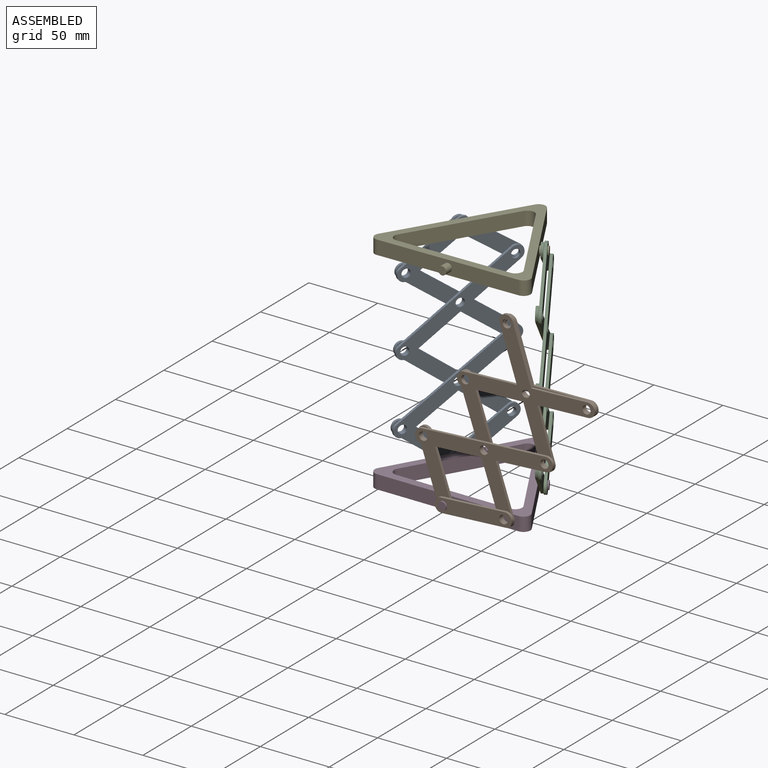
[diagram: assembled view]
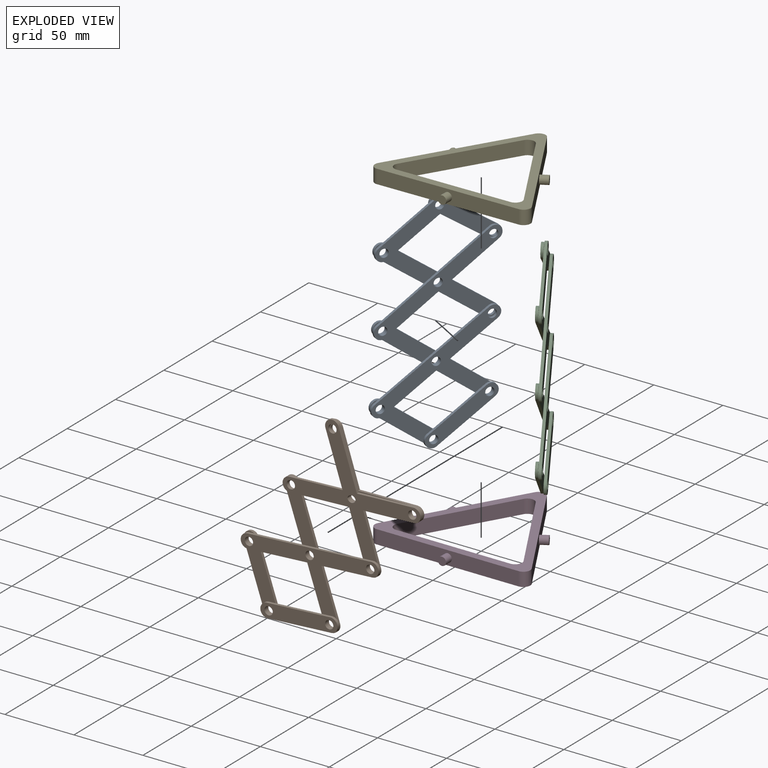
[diagram: exploded view]
GUIDED TOUR — MATED ASSEMBLY WITH SUBASSEMBLIES (Onshape document b6781e57c7d92bd61f52bf06, AutoMate assembly b6781e57c7d92bd61f52bf06_af8572f9969f21d5b0e457aa_2a93b60660b95c885320334c_default)

This assembly has 26 component occurrences arranged in 5 top-level units: 2 individual components plus 3 subassemblies (S0, S1, S2). The tour has two levels: first the top level, where each subassembly is treated as one rigid unit; then each subassembly is toured internally in its own section (nesting deeper than one subassembly level is flattened into its subassembly's section).

Components are labeled P0..P25 across the whole record; subassembly units are labeled S0..S2. A mate is a constraint between two units; its type names the relative motion it leaves free:
  REVOLUTE — leaves rotation about the listed axis free (a hinge).
Axis/direction vectors are unit vectors and 'through' points are millimeter coordinates, both in the assembly's world frame.

TOP-LEVEL MATES (between units; each subassembly's internal mates are listed in its own section)
  1. REVOLUTE "Revolute 4": P8 <-> S0, axis (0.866, -0.500, 0.000) through (-32.60, 18.82, 5.00) mm
  2. REVOLUTE "Revolute 3": P21 <-> S2, axis (-0.866, -0.500, 0.000) through (32.02, 19.82, 157.89) mm
  3. REVOLUTE "Revolute 1": P8 <-> S1, axis (0.000, 1.000, 0.000) through (0.00, -37.64, 5.00) mm
  4. REVOLUTE "Revolute 2": P8 <-> S2, axis (-0.866, -0.500, 0.000) through (32.60, 18.82, 5.00) mm

TOP-LEVEL ASSEMBLY ORDER
  1. S2 — the base component [order verified]
  2. S0 [order verified]
  3. P8 [order verified]
  4. S1 [order verified]
  5. P21 [order verified]
(S1 verified with a relaxed clearance tolerance: the source model stores slight part interference there.)
Order-tag legend:
  [order verified] — this step's position reverses a verified removal order: the component was checked to insert without passing through the ones already placed.

Of the 26 component occurrences, 24 carry the full construction recipe — the FeatureScript program that regenerates the part's solid from scratch; the rest are supplied as boundary geometry only. Each toured unit is shown spotlighted twice — assembled, then exploded with a leader line back to its socket (green = recipe-attached component, orange = geometry-only, blue = subassembly unit; the rest desaturated gray).
NOTE — document 2 of 3 of this assembly tour. The two overview renders and the header above are repeated from document 1; the component sections below continue where the previous document stopped.
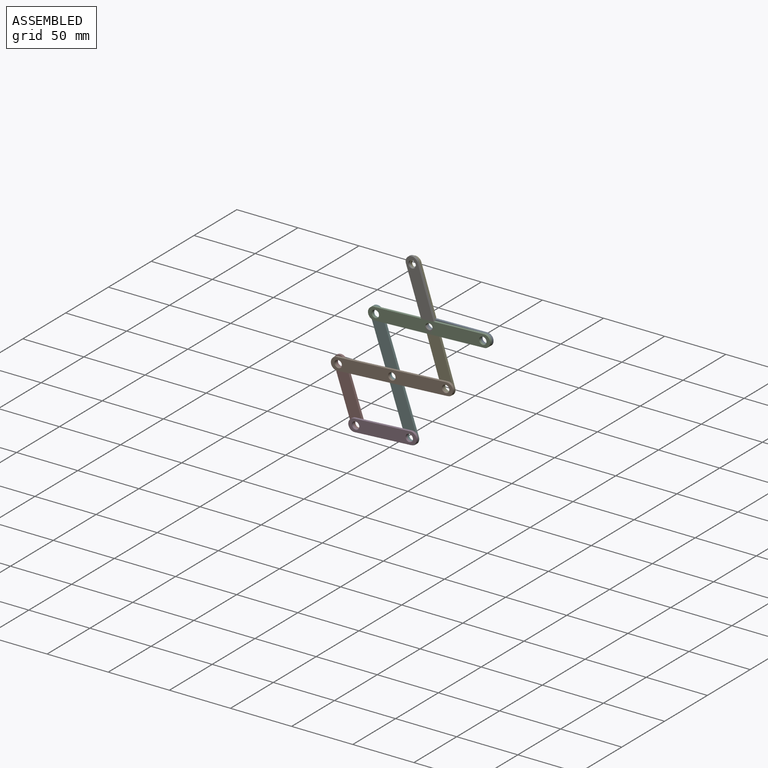
[diagram: subassembly S1 — assembled view]
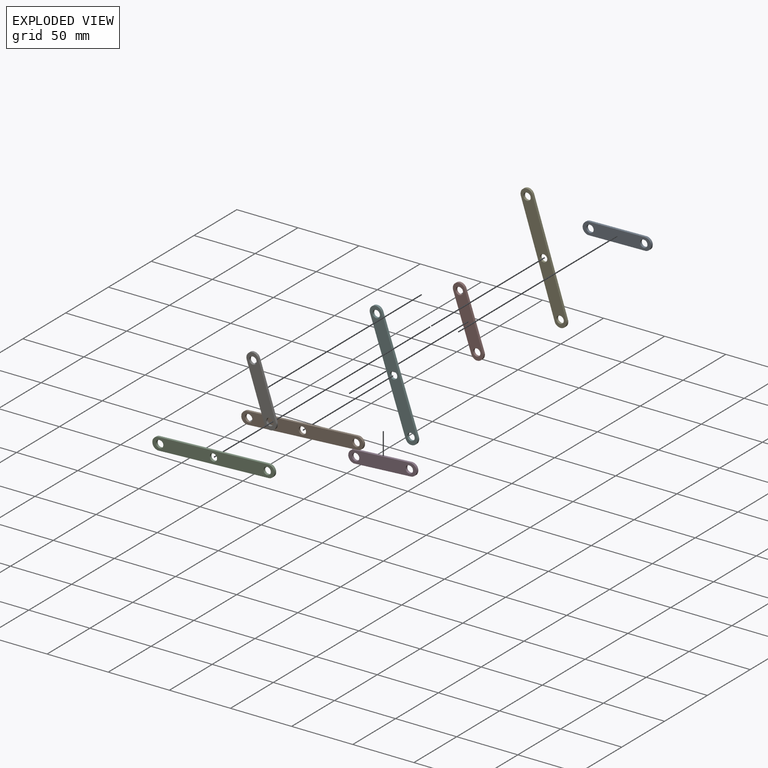
[diagram: subassembly S1 — exploded view]
SUBASSEMBLY S1 TOUR — 8 components, shown here in isolation at its own camera.

INTERNAL MATES
  1. REVOLUTE "Revolute 1": P11 <-> P3, axis (0.000, -1.000, 0.000) through (29.68, -37.64, 49.22) mm
  2. REVOLUTE "Revolute 3": P9 <-> P3, axis (0.000, -1.000, 0.000) through (73.61, -37.64, 51.81) mm
  3. REVOLUTE "Revolute 8": P1 <-> P4, axis (0.000, -1.000, 0.000) through (104.04, -37.64, 95.52) mm
  4. REVOLUTE "Revolute 10": P1 <-> P16, axis (0.000, 1.000, 0.000) through (60.05, -37.64, 94.72) mm
  5. REVOLUTE "Revolute 5": P22 <-> P3, axis (0.000, -1.000, 0.000) through (-14.24, -37.64, 46.63) mm
  6. REVOLUTE "Revolute 9": P9 <-> P16, axis (0.000, -1.000, 0.000) through (46.24, -37.64, 136.50) mm
  7. REVOLUTE "Revolute 7": P11 <-> P5, axis (0.000, -1.000, 0.000) through (43.92, -37.64, 7.59) mm
  8. REVOLUTE "Revolute 6": P22 <-> P5, axis (0.000, -1.000, 0.000) through (0.00, -37.64, 5.00) mm
  9. REVOLUTE "Revolute 4": P9 <-> P4, axis (0.000, -1.000, 0.000) through (60.08, -37.64, 93.68) mm
  10. REVOLUTE "Revolute 2": P11 <-> P4, axis (0.000, -1.000, 0.000) through (15.12, -37.64, 91.80) mm
  11. REVOLUTE "Revolute 4": P9 <-> P4, axis (0.000, -1.000, 0.000) through (60.08, -37.64, 93.68) mm
  12. REVOLUTE "Revolute 9": P9 <-> P16, axis (0.000, -1.000, 0.000) through (46.24, -37.64, 136.50) mm
  13. REVOLUTE "Revolute 8": P1 <-> P4, axis (0.000, -1.000, 0.000) through (104.04, -37.64, 95.52) mm
  14. REVOLUTE "Revolute 6": P22 <-> P5, axis (0.000, -1.000, 0.000) through (0.00, -37.64, 5.00) mm
  15. REVOLUTE "Revolute 7": P11 <-> P5, axis (0.000, -1.000, 0.000) through (43.92, -37.64, 7.59) mm
  16. REVOLUTE "Revolute 2": P11 <-> P4, axis (0.000, -1.000, 0.000) through (15.12, -37.64, 91.80) mm
  17. REVOLUTE "Revolute 5": P22 <-> P3, axis (0.000, -1.000, 0.000) through (-14.24, -37.64, 46.63) mm
  18. REVOLUTE "Revolute 10": P1 <-> P16, axis (0.000, 1.000, 0.000) through (60.05, -37.64, 94.72) mm
  19. REVOLUTE "Revolute 3": P9 <-> P3, axis (0.000, -1.000, 0.000) through (73.61, -37.64, 51.81) mm
  20. REVOLUTE "Revolute 1": P11 <-> P3, axis (0.000, -1.000, 0.000) through (29.68, -37.64, 49.22) mm

ASSEMBLY ORDER (within the subassembly)
  1. P11 — the base component [order verified]
  2. P1 [order verified]
  3. P9 [order verified]
  4. P22 [order verified]
  5. P5 [order verified]
  6. P16 [order verified]
  7. P4 [order verified]
  8. P3 [order verified]
Order-tag legend:
  [order verified] — this step's position reverses a verified removal order: the component was checked to insert without passing through the ones already placed.
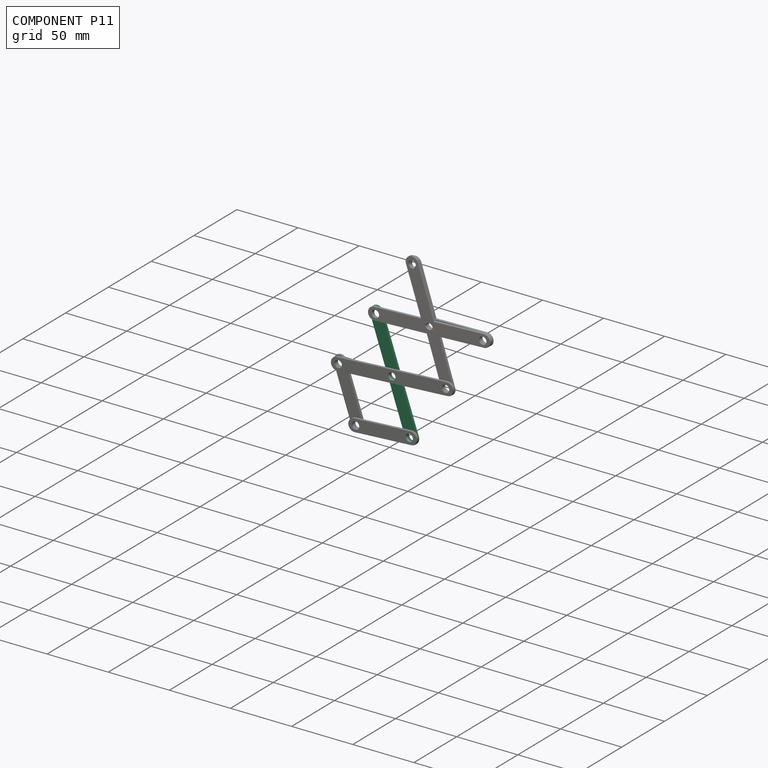
[diagram: component P11 — assembled]
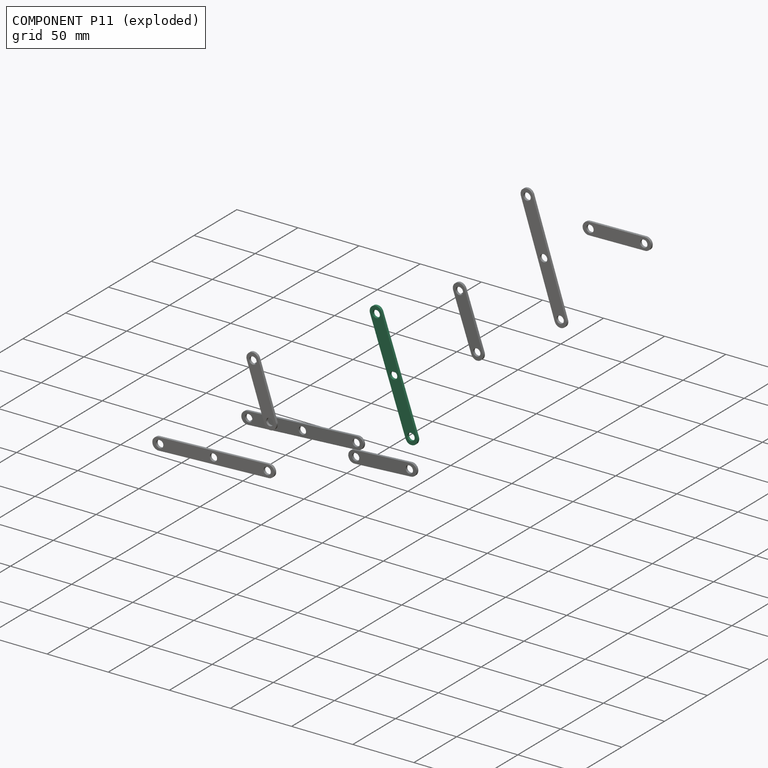
[diagram: component P11 — exploded]
COMPONENT P11 — same part as P3 (CADFS 00656249); its construction recipe is shown at P3.
Held by: REVOLUTE mate "Revolute 1" to P3; REVOLUTE mate "Revolute 7" to P5; REVOLUTE mate "Revolute 2" to P4; REVOLUTE mate "Revolute 7" to P5; REVOLUTE mate "Revolute 2" to P4; REVOLUTE mate "Revolute 1" to P3.
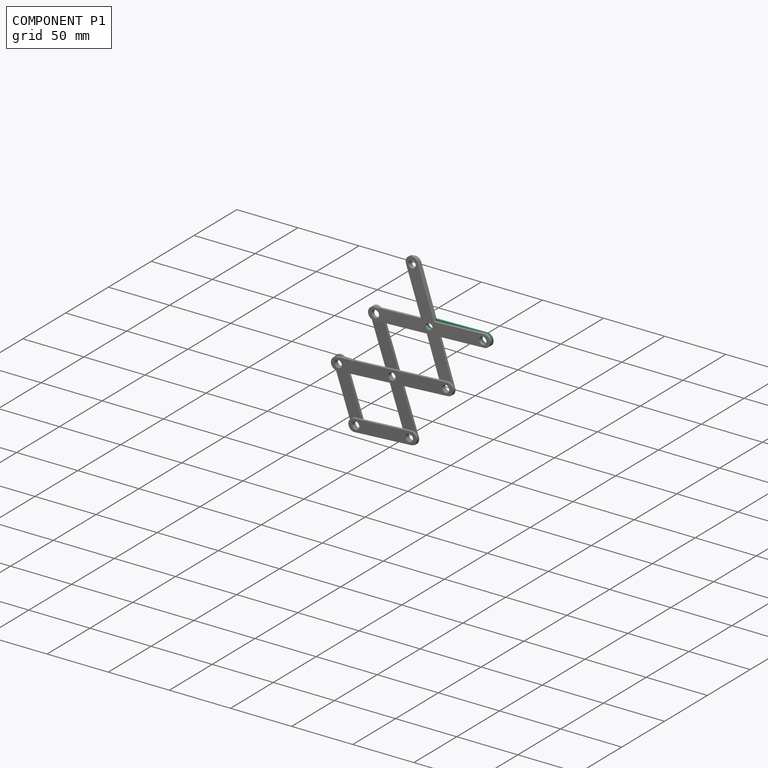
[diagram: component P1 — assembled]
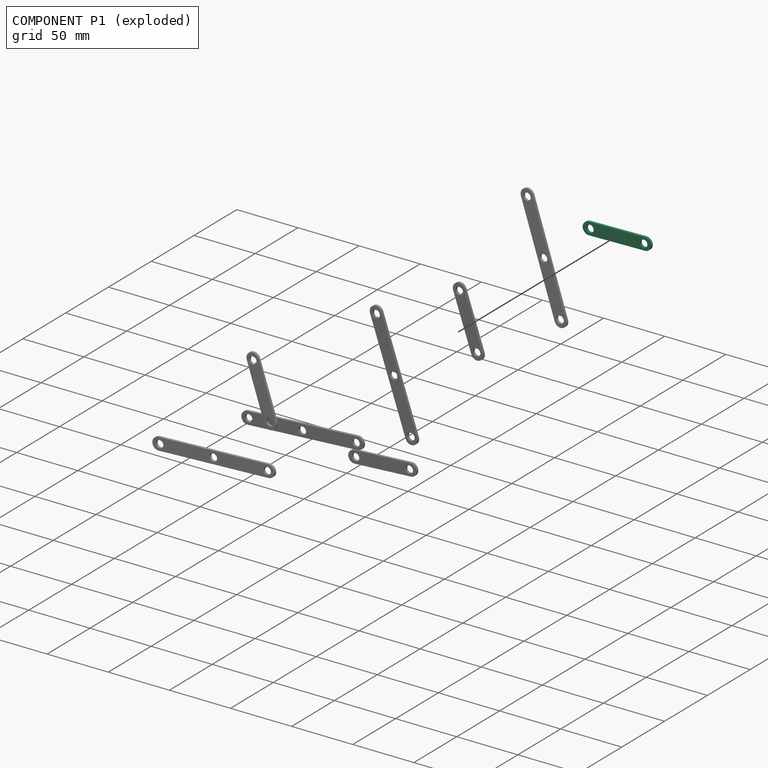
[diagram: component P1 — exploded]
COMPONENT P1 — recipe-attached (CADFS 00656250, mesh-verified: the recipe's output STEP matches this component's geometry to below the mesh-comparison resolution (tessellation chordal tolerance ~0.0853 mm)).
Held by: REVOLUTE mate "Revolute 8" to P4; REVOLUTE mate "Revolute 10" to P16; REVOLUTE mate "Revolute 8" to P4; REVOLUTE mate "Revolute 10" to P16.
Construction recipe (FeatureScript — the CAD program that rebuilds this solid; sketch coordinates are in the units given by the * unit suffixes, e.g. mm):

FeatureScript 1511;
import(path : "onshape/std/geometry.fs", version : "1511.0");
import(path : "onshape/std/common.fs", version : "1511.0");
const mm = millimeter;
const VERTEX = EntityType.VERTEX;
const EDGE = EntityType.EDGE;
const FACE = EntityType.FACE;
const BODY = EntityType.BODY;
function v(x, y){return vector(x, y);}
function OD(order){return orderDisambiguation(order);}
function OSD(set){return originalSetDisambiguation(set);}
function TD(topology){return topologyDisambiguation(topology);}
function TDD(query){return trueDependencyDisambiguation(query);}
function sQuery(a, b, c) {return sketchEntityQuery(a, b, c);}

annotation { "Feature Type Name" : "Feature", "Feature Type Description" : "" }
export const myFeature = defineFeature(function(context is Context, id is Id, definition is map)
    precondition{}
    {
        {
            var Q0;
            Q0=qCreatedBy(makeId("Front.planeOp"),FACE);
            var sketch = newSketch(context, id + "F0", { "sketchPlane" : qUnion([Q0])});
            skLineSegment(sketch, "E0.bottom", {"start": v(-49.84, 5.24) * mm, "end": v(6.16, 5.24) * mm});
            skLineSegment(sketch, "E0.top", {"start": v(-49.84, -4.76) * mm, "end": v(6.16, -4.76) * mm});
            skLineSegment(sketch, "E0.left", {"start": v(-49.84, 5.24) * mm, "end": v(-49.84, -4.76) * mm});
            skLineSegment(sketch, "E0.right", {"start": v(6.16, 5.24) * mm, "end": v(6.16, -4.76) * mm});
            skCircle(sketch, "E1", {"center": v(0.16, 0.24) * mm, "radius": 3 * mm});
            skCircle(sketch, "E2", {"center": v(-43.84, 0.24) * mm, "radius": 3 * mm});
            skPoint(sketch, "E2.centerSnap0", {"position": v(-49.84, 0.24) * mm});
            skSolve(sketch);
        }
        {
            var Q0;
            Q0 = qSketchRegion(id + "F0", true);
            extrude(context, id + "F1", {"entities" : qUnion([Q0]), "depth" : 2 * mm, "offsetDistance" : 25 * mm});
        }
        {
            var Q0;
            Q0=makeQuery(id+"F1.opExtrude","SWEPT_EDGE",EDGE,{"disambiguationData":[OSD([sQuery(id+"F0.wireOp",EDGE,"E0.bottom"),sQuery(id+"F0.wireOp",EDGE,"E0.left")])]});
            var Q1;
            Q1=makeQuery(id+"F1.opExtrude","SWEPT_EDGE",EDGE,{"disambiguationData":[OSD([sQuery(id+"F0.wireOp",EDGE,"E0.top"),sQuery(id+"F0.wireOp",EDGE,"E0.left")])]});
            var Q2;
            Q2=makeQuery(id+"F1.opExtrude","SWEPT_EDGE",EDGE,{"disambiguationData":[OSD([sQuery(id+"F0.wireOp",EDGE,"E0.bottom"),sQuery(id+"F0.wireOp",EDGE,"E0.right")])]});
            var Q3;
            Q3=makeQuery(id+"F1.opExtrude","SWEPT_EDGE",EDGE,{"disambiguationData":[OSD([sQuery(id+"F0.wireOp",EDGE,"E0.top"),sQuery(id+"F0.wireOp",EDGE,"E0.right")])]});
            fillet(context, id + "F2", {"entities" : qUnion([Q0, Q1, Q2, Q3]), "radius" : 5 * mm, "tangentPropagation" : true, "allowEdgeOverflow" : false});
        }
    });
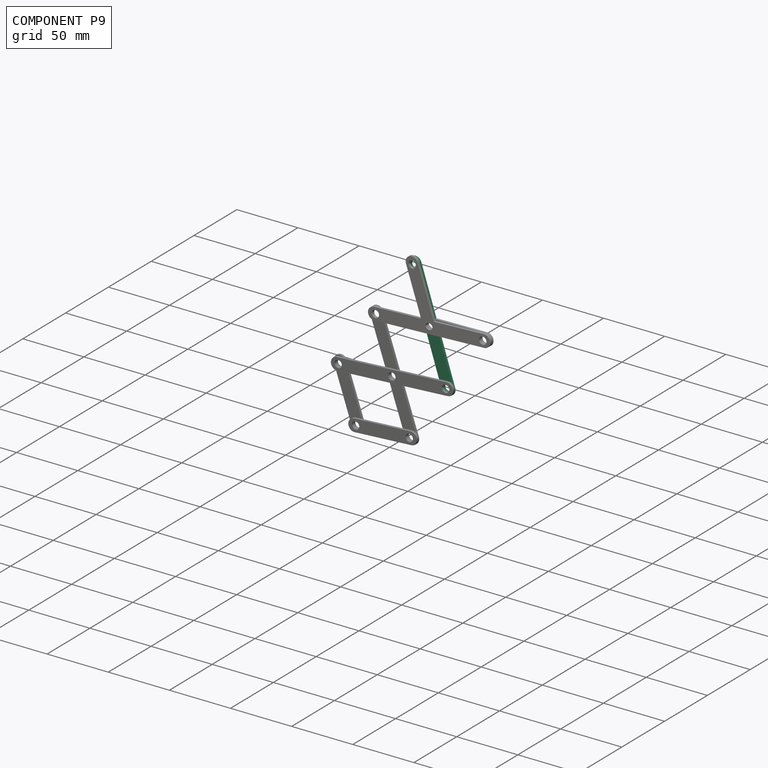
[diagram: component P9 — assembled]
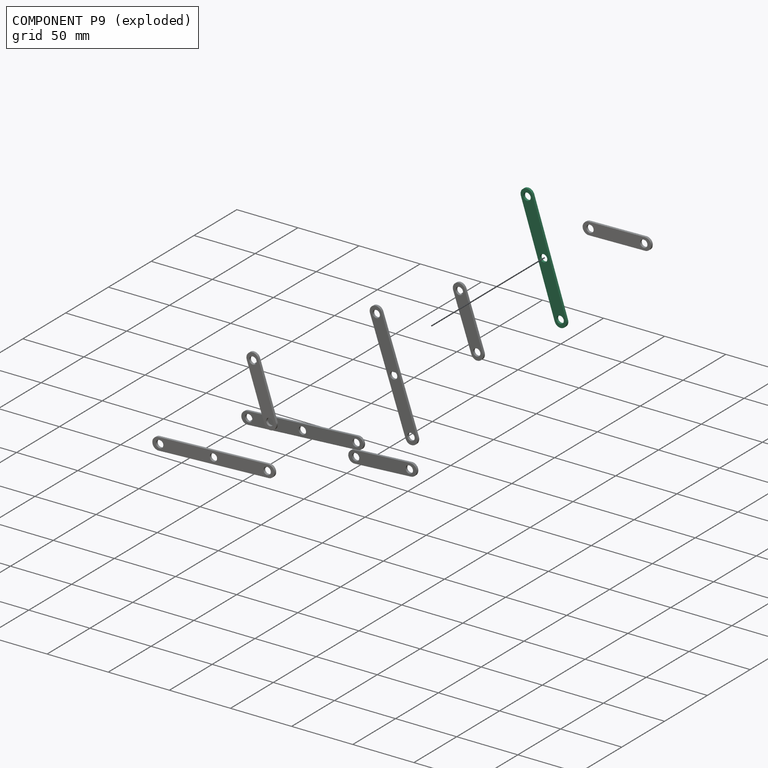
[diagram: component P9 — exploded]
COMPONENT P9 — same part as P3 (CADFS 00656249); its construction recipe is shown at P3.
Held by: REVOLUTE mate "Revolute 3" to P3; REVOLUTE mate "Revolute 9" to P16; REVOLUTE mate "Revolute 4" to P4; REVOLUTE mate "Revolute 4" to P4; REVOLUTE mate "Revolute 9" to P16; REVOLUTE mate "Revolute 3" to P3.
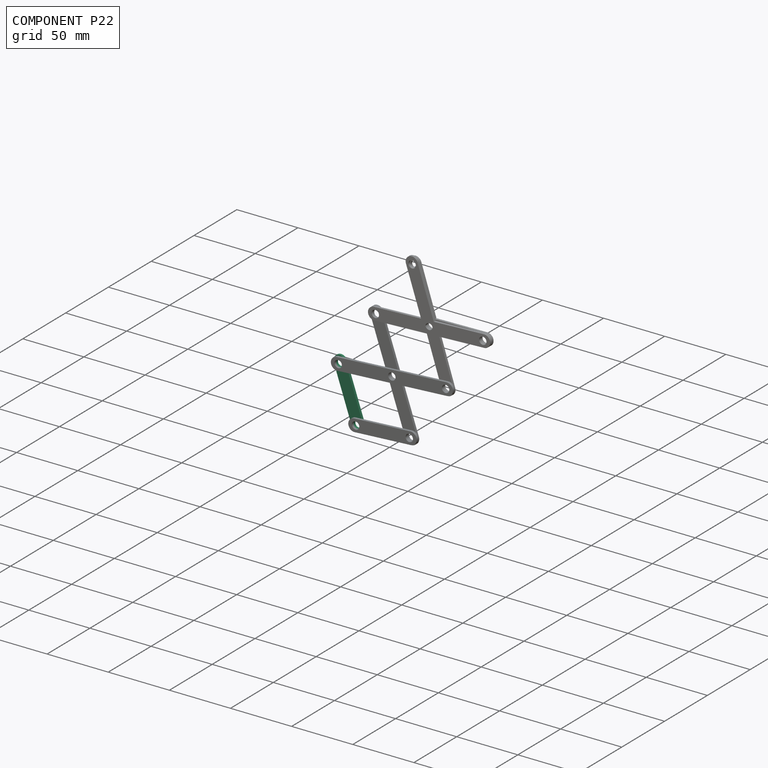
[diagram: component P22 — assembled]
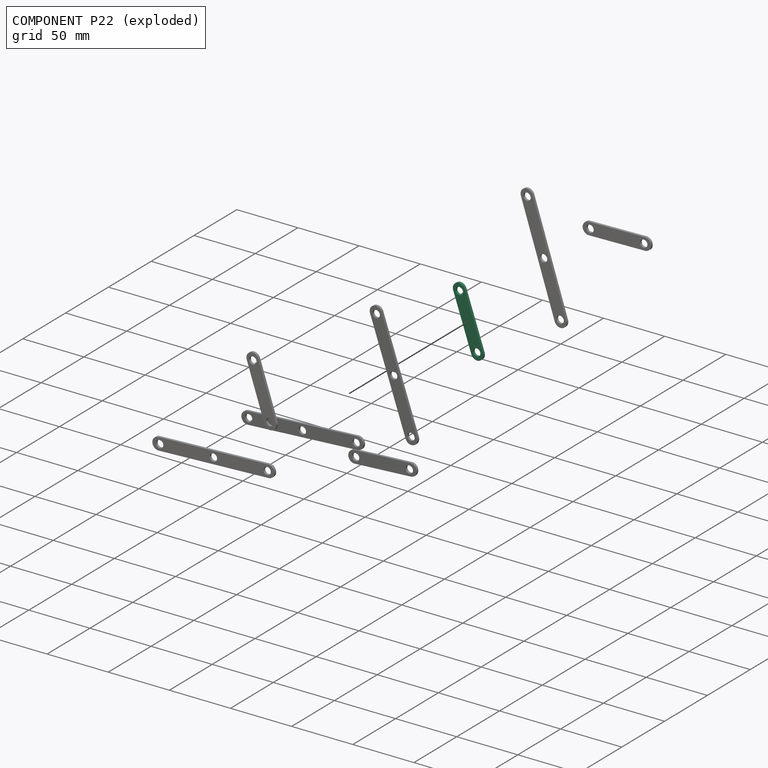
[diagram: component P22 — exploded]
COMPONENT P22 — recipe-attached (CADFS 00656250, mesh-verified: the recipe's output STEP matches this component's geometry to below the mesh-comparison resolution (tessellation chordal tolerance ~0.0853 mm)).
Held by: REVOLUTE mate "Revolute 5" to P3; REVOLUTE mate "Revolute 6" to P5; REVOLUTE mate "Revolute 6" to P5; REVOLUTE mate "Revolute 5" to P3.
Construction recipe (FeatureScript — the CAD program that rebuilds this solid; sketch coordinates are in the units given by the * unit suffixes, e.g. mm):

FeatureScript 1511;
import(path : "onshape/std/geometry.fs", version : "1511.0");
import(path : "onshape/std/common.fs", version : "1511.0");
const mm = millimeter;
const VERTEX = EntityType.VERTEX;
const EDGE = EntityType.EDGE;
const FACE = EntityType.FACE;
const BODY = EntityType.BODY;
function v(x, y){return vector(x, y);}
function OD(order){return orderDisambiguation(order);}
function OSD(set){return originalSetDisambiguation(set);}
function TD(topology){return topologyDisambiguation(topology);}
function TDD(query){return trueDependencyDisambiguation(query);}
function sQuery(a, b, c) {return sketchEntityQuery(a, b, c);}

annotation { "Feature Type Name" : "Feature", "Feature Type Description" : "" }
export const myFeature = defineFeature(function(context is Context, id is Id, definition is map)
    precondition{}
    {
        {
            var Q0;
            Q0=qCreatedBy(makeId("Front.planeOp"),FACE);
            var sketch = newSketch(context, id + "F0", { "sketchPlane" : qUnion([Q0])});
            skLineSegment(sketch, "E0.bottom", {"start": v(-49.84, 5.24) * mm, "end": v(6.16, 5.24) * mm});
            skLineSegment(sketch, "E0.top", {"start": v(-49.84, -4.76) * mm, "end": v(6.16, -4.76) * mm});
            skLineSegment(sketch, "E0.left", {"start": v(-49.84, 5.24) * mm, "end": v(-49.84, -4.76) * mm});
            skLineSegment(sketch, "E0.right", {"start": v(6.16, 5.24) * mm, "end": v(6.16, -4.76) * mm});
            skCircle(sketch, "E1", {"center": v(0.16, 0.24) * mm, "radius": 3 * mm});
            skCircle(sketch, "E2", {"center": v(-43.84, 0.24) * mm, "radius": 3 * mm});
            skPoint(sketch, "E2.centerSnap0", {"position": v(-49.84, 0.24) * mm});
            skSolve(sketch);
        }
        {
            var Q0;
            Q0 = qSketchRegion(id + "F0", true);
            extrude(context, id + "F1", {"entities" : qUnion([Q0]), "depth" : 2 * mm, "offsetDistance" : 25 * mm});
        }
        {
            var Q0;
            Q0=makeQuery(id+"F1.opExtrude","SWEPT_EDGE",EDGE,{"disambiguationData":[OSD([sQuery(id+"F0.wireOp",EDGE,"E0.bottom"),sQuery(id+"F0.wireOp",EDGE,"E0.left")])]});
            var Q1;
            Q1=makeQuery(id+"F1.opExtrude","SWEPT_EDGE",EDGE,{"disambiguationData":[OSD([sQuery(id+"F0.wireOp",EDGE,"E0.top"),sQuery(id+"F0.wireOp",EDGE,"E0.left")])]});
            var Q2;
            Q2=makeQuery(id+"F1.opExtrude","SWEPT_EDGE",EDGE,{"disambiguationData":[OSD([sQuery(id+"F0.wireOp",EDGE,"E0.bottom"),sQuery(id+"F0.wireOp",EDGE,"E0.right")])]});
            var Q3;
            Q3=makeQuery(id+"F1.opExtrude","SWEPT_EDGE",EDGE,{"disambiguationData":[OSD([sQuery(id+"F0.wireOp",EDGE,"E0.top"),sQuery(id+"F0.wireOp",EDGE,"E0.right")])]});
            fillet(context, id + "F2", {"entities" : qUnion([Q0, Q1, Q2, Q3]), "radius" : 5 * mm, "tangentPropagation" : true, "allowEdgeOverflow" : false});
        }
    });
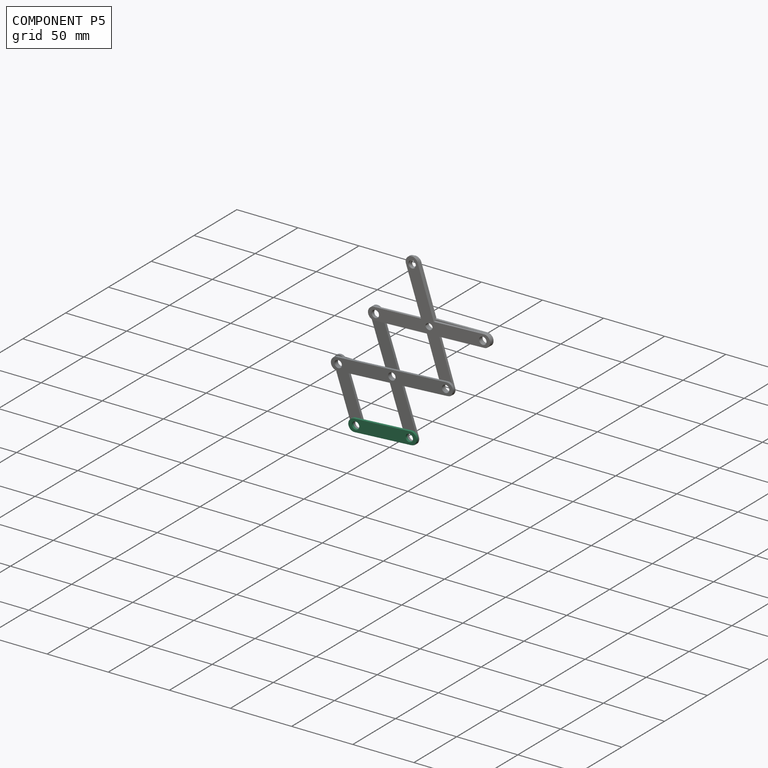
[diagram: component P5 — assembled]
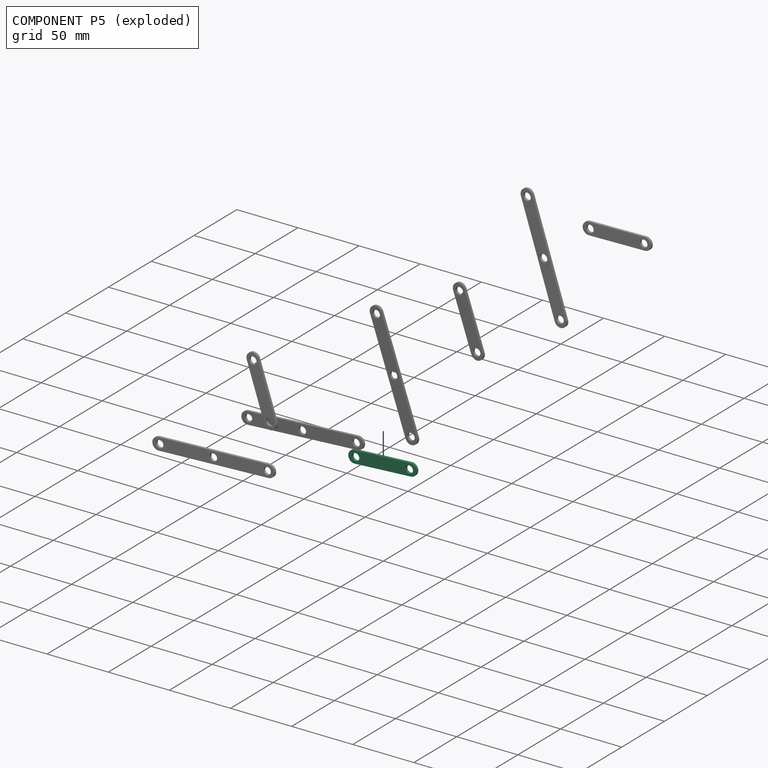
[diagram: component P5 — exploded]
COMPONENT P5 — recipe-attached (CADFS 00656250, mesh-verified: the recipe's output STEP matches this component's geometry to below the mesh-comparison resolution (tessellation chordal tolerance ~0.0853 mm)).
Held by: REVOLUTE mate "Revolute 7" to P11; REVOLUTE mate "Revolute 6" to P22; REVOLUTE mate "Revolute 6" to P22; REVOLUTE mate "Revolute 7" to P11.
Construction recipe (FeatureScript — the CAD program that rebuilds this solid; sketch coordinates are in the units given by the * unit suffixes, e.g. mm):

FeatureScript 1511;
import(path : "onshape/std/geometry.fs", version : "1511.0");
import(path : "onshape/std/common.fs", version : "1511.0");
const mm = millimeter;
const VERTEX = EntityType.VERTEX;
const EDGE = EntityType.EDGE;
const FACE = EntityType.FACE;
const BODY = EntityType.BODY;
function v(x, y){return vector(x, y);}
function OD(order){return orderDisambiguation(order);}
function OSD(set){return originalSetDisambiguation(set);}
function TD(topology){return topologyDisambiguation(topology);}
function TDD(query){return trueDependencyDisambiguation(query);}
function sQuery(a, b, c) {return sketchEntityQuery(a, b, c);}

annotation { "Feature Type Name" : "Feature", "Feature Type Description" : "" }
export const myFeature = defineFeature(function(context is Context, id is Id, definition is map)
    precondition{}
    {
        {
            var Q0;
            Q0=qCreatedBy(makeId("Front.planeOp"),FACE);
            var sketch = newSketch(context, id + "F0", { "sketchPlane" : qUnion([Q0])});
            skLineSegment(sketch, "E0.bottom", {"start": v(-49.84, 5.24) * mm, "end": v(6.16, 5.24) * mm});
            skLineSegment(sketch, "E0.top", {"start": v(-49.84, -4.76) * mm, "end": v(6.16, -4.76) * mm});
            skLineSegment(sketch, "E0.left", {"start": v(-49.84, 5.24) * mm, "end": v(-49.84, -4.76) * mm});
            skLineSegment(sketch, "E0.right", {"start": v(6.16, 5.24) * mm, "end": v(6.16, -4.76) * mm});
            skCircle(sketch, "E1", {"center": v(0.16, 0.24) * mm, "radius": 3 * mm});
            skCircle(sketch, "E2", {"center": v(-43.84, 0.24) * mm, "radius": 3 * mm});
            skPoint(sketch, "E2.centerSnap0", {"position": v(-49.84, 0.24) * mm});
            skSolve(sketch);
        }
        {
            var Q0;
            Q0 = qSketchRegion(id + "F0", true);
            extrude(context, id + "F1", {"entities" : qUnion([Q0]), "depth" : 2 * mm, "offsetDistance" : 25 * mm});
        }
        {
            var Q0;
            Q0=makeQuery(id+"F1.opExtrude","SWEPT_EDGE",EDGE,{"disambiguationData":[OSD([sQuery(id+"F0.wireOp",EDGE,"E0.bottom"),sQuery(id+"F0.wireOp",EDGE,"E0.left")])]});
            var Q1;
            Q1=makeQuery(id+"F1.opExtrude","SWEPT_EDGE",EDGE,{"disambiguationData":[OSD([sQuery(id+"F0.wireOp",EDGE,"E0.top"),sQuery(id+"F0.wireOp",EDGE,"E0.left")])]});
            var Q2;
            Q2=makeQuery(id+"F1.opExtrude","SWEPT_EDGE",EDGE,{"disambiguationData":[OSD([sQuery(id+"F0.wireOp",EDGE,"E0.bottom"),sQuery(id+"F0.wireOp",EDGE,"E0.right")])]});
            var Q3;
            Q3=makeQuery(id+"F1.opExtrude","SWEPT_EDGE",EDGE,{"disambiguationData":[OSD([sQuery(id+"F0.wireOp",EDGE,"E0.top"),sQuery(id+"F0.wireOp",EDGE,"E0.right")])]});
            fillet(context, id + "F2", {"entities" : qUnion([Q0, Q1, Q2, Q3]), "radius" : 5 * mm, "tangentPropagation" : true, "allowEdgeOverflow" : false});
        }
    });
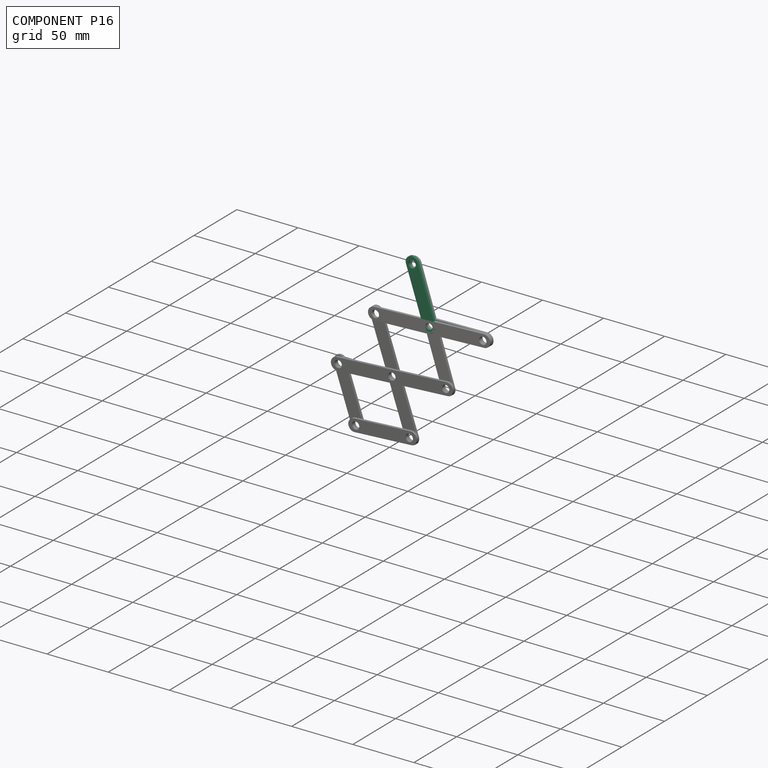
[diagram: component P16 — assembled]
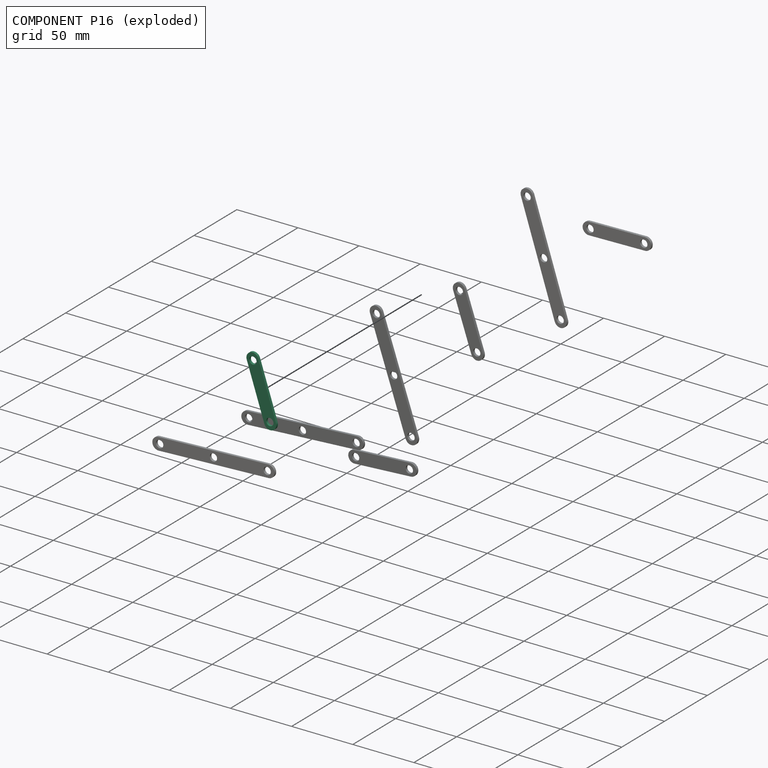
[diagram: component P16 — exploded]
COMPONENT P16 — recipe-attached (CADFS 00656250, mesh-verified: the recipe's output STEP matches this component's geometry to below the mesh-comparison resolution (tessellation chordal tolerance ~0.0853 mm)).
Held by: REVOLUTE mate "Revolute 10" to P1; REVOLUTE mate "Revolute 9" to P9; REVOLUTE mate "Revolute 9" to P9; REVOLUTE mate "Revolute 10" to P1.
Construction recipe (FeatureScript — the CAD program that rebuilds this solid; sketch coordinates are in the units given by the * unit suffixes, e.g. mm):

FeatureScript 1511;
import(path : "onshape/std/geometry.fs", version : "1511.0");
import(path : "onshape/std/common.fs", version : "1511.0");
const mm = millimeter;
const VERTEX = EntityType.VERTEX;
const EDGE = EntityType.EDGE;
const FACE = EntityType.FACE;
const BODY = EntityType.BODY;
function v(x, y){return vector(x, y);}
function OD(order){return orderDisambiguation(order);}
function OSD(set){return originalSetDisambiguation(set);}
function TD(topology){return topologyDisambiguation(topology);}
function TDD(query){return trueDependencyDisambiguation(query);}
function sQuery(a, b, c) {return sketchEntityQuery(a, b, c);}

annotation { "Feature Type Name" : "Feature", "Feature Type Description" : "" }
export const myFeature = defineFeature(function(context is Context, id is Id, definition is map)
    precondition{}
    {
        {
            var Q0;
            Q0=qCreatedBy(makeId("Front.planeOp"),FACE);
            var sketch = newSketch(context, id + "F0", { "sketchPlane" : qUnion([Q0])});
            skLineSegment(sketch, "E0.bottom", {"start": v(-49.84, 5.24) * mm, "end": v(6.16, 5.24) * mm});
            skLineSegment(sketch, "E0.top", {"start": v(-49.84, -4.76) * mm, "end": v(6.16, -4.76) * mm});
            skLineSegment(sketch, "E0.left", {"start": v(-49.84, 5.24) * mm, "end": v(-49.84, -4.76) * mm});
            skLineSegment(sketch, "E0.right", {"start": v(6.16, 5.24) * mm, "end": v(6.16, -4.76) * mm});
            skCircle(sketch, "E1", {"center": v(0.16, 0.24) * mm, "radius": 3 * mm});
            skCircle(sketch, "E2", {"center": v(-43.84, 0.24) * mm, "radius": 3 * mm});
            skPoint(sketch, "E2.centerSnap0", {"position": v(-49.84, 0.24) * mm});
            skSolve(sketch);
        }
        {
            var Q0;
            Q0 = qSketchRegion(id + "F0", true);
            extrude(context, id + "F1", {"entities" : qUnion([Q0]), "depth" : 2 * mm, "offsetDistance" : 25 * mm});
        }
        {
            var Q0;
            Q0=makeQuery(id+"F1.opExtrude","SWEPT_EDGE",EDGE,{"disambiguationData":[OSD([sQuery(id+"F0.wireOp",EDGE,"E0.bottom"),sQuery(id+"F0.wireOp",EDGE,"E0.left")])]});
            var Q1;
            Q1=makeQuery(id+"F1.opExtrude","SWEPT_EDGE",EDGE,{"disambiguationData":[OSD([sQuery(id+"F0.wireOp",EDGE,"E0.top"),sQuery(id+"F0.wireOp",EDGE,"E0.left")])]});
            var Q2;
            Q2=makeQuery(id+"F1.opExtrude","SWEPT_EDGE",EDGE,{"disambiguationData":[OSD([sQuery(id+"F0.wireOp",EDGE,"E0.bottom"),sQuery(id+"F0.wireOp",EDGE,"E0.right")])]});
            var Q3;
            Q3=makeQuery(id+"F1.opExtrude","SWEPT_EDGE",EDGE,{"disambiguationData":[OSD([sQuery(id+"F0.wireOp",EDGE,"E0.top"),sQuery(id+"F0.wireOp",EDGE,"E0.right")])]});
            fillet(context, id + "F2", {"entities" : qUnion([Q0, Q1, Q2, Q3]), "radius" : 5 * mm, "tangentPropagation" : true, "allowEdgeOverflow" : false});
        }
    });
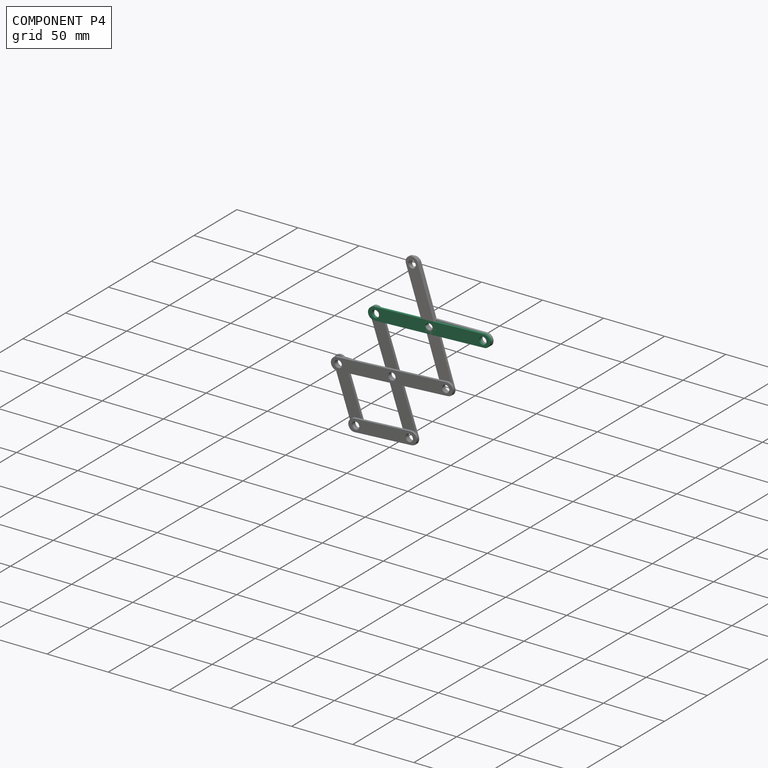
[diagram: component P4 — assembled]
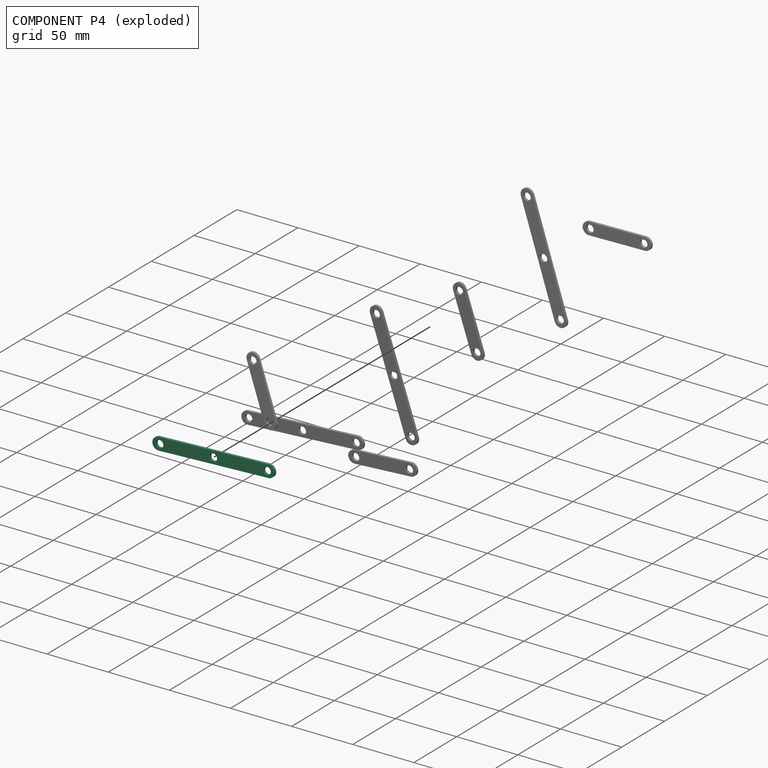
[diagram: component P4 — exploded]
COMPONENT P4 — same part as P3 (CADFS 00656249); its construction recipe is shown at P3.
Held by: REVOLUTE mate "Revolute 8" to P1; REVOLUTE mate "Revolute 4" to P9; REVOLUTE mate "Revolute 2" to P11; REVOLUTE mate "Revolute 4" to P9; REVOLUTE mate "Revolute 8" to P1; REVOLUTE mate "Revolute 2" to P11.
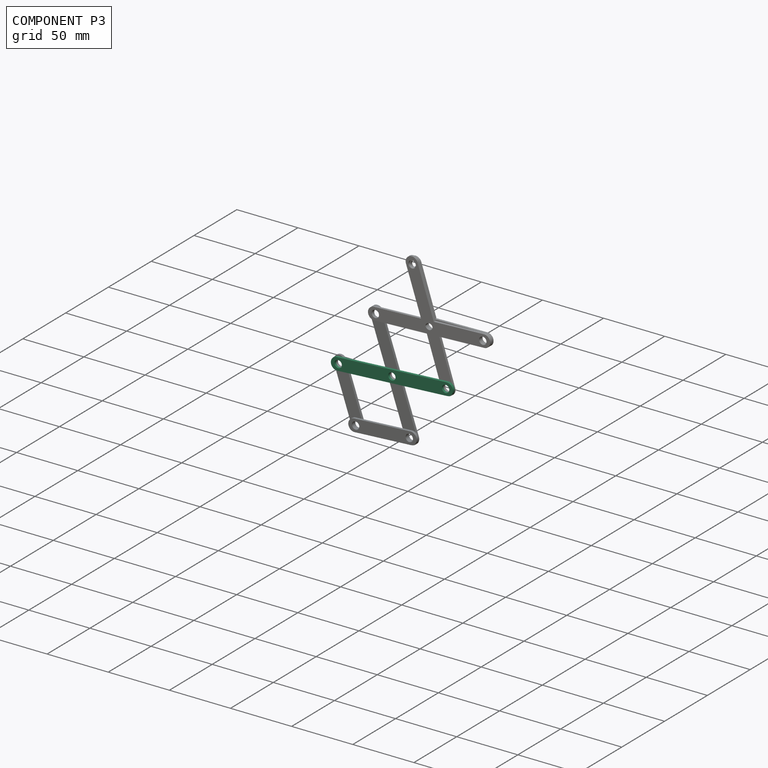
[diagram: component P3 — assembled]
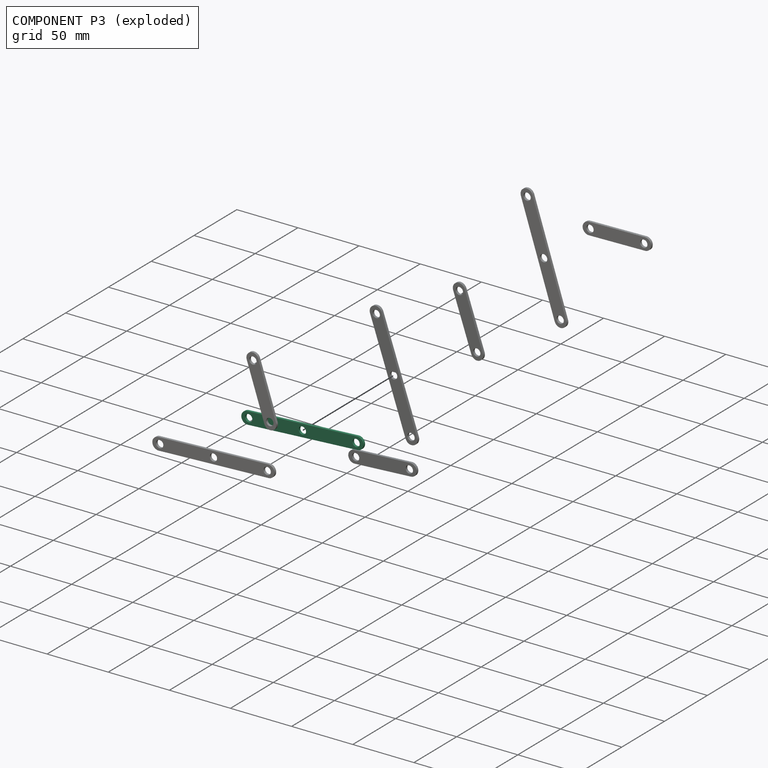
[diagram: component P3 — exploded]
COMPONENT P3 — recipe-attached (CADFS 00656249, mesh-verified: the recipe's output STEP matches this component's geometry to below the mesh-comparison resolution (tessellation chordal tolerance ~0.151 mm)).
Held by: REVOLUTE mate "Revolute 1" to P11; REVOLUTE mate "Revolute 3" to P9; REVOLUTE mate "Revolute 5" to P22; REVOLUTE mate "Revolute 5" to P22; REVOLUTE mate "Revolute 3" to P9; REVOLUTE mate "Revolute 1" to P11.
Construction recipe (FeatureScript — the CAD program that rebuilds this solid; sketch coordinates are in the units given by the * unit suffixes, e.g. mm):

FeatureScript 1511;
import(path : "onshape/std/geometry.fs", version : "1511.0");
import(path : "onshape/std/common.fs", version : "1511.0");
const mm = millimeter;
const VERTEX = EntityType.VERTEX;
const EDGE = EntityType.EDGE;
const FACE = EntityType.FACE;
const BODY = EntityType.BODY;
function v(x, y){return vector(x, y);}
function OD(order){return orderDisambiguation(order);}
function OSD(set){return originalSetDisambiguation(set);}
function TD(topology){return topologyDisambiguation(topology);}
function TDD(query){return trueDependencyDisambiguation(query);}
function sQuery(a, b, c) {return sketchEntityQuery(a, b, c);}

annotation { "Feature Type Name" : "Feature", "Feature Type Description" : "" }
export const myFeature = defineFeature(function(context is Context, id is Id, definition is map)
    precondition{}
    {
        {
            var Q0;
            Q0=qCreatedBy(makeId("Front.planeOp"),FACE);
            var sketch = newSketch(context, id + "F0", { "sketchPlane" : qUnion([Q0])});
            skLineSegment(sketch, "E0.bottom", {"start": v(-50, 5) * mm, "end": v(50, 5) * mm});
            skLineSegment(sketch, "E0.top", {"start": v(-50, -5) * mm, "end": v(50, -5) * mm});
            skLineSegment(sketch, "E0.left", {"start": v(-50, 5) * mm, "end": v(-50, -5) * mm});
            skLineSegment(sketch, "E0.right", {"start": v(50, 5) * mm, "end": v(50, -5) * mm});
            skCircle(sketch, "E1", {"center": v(0, 0) * mm, "radius": 3 * mm});
            skCircle(sketch, "E2", {"center": v(-44, 0) * mm, "radius": 3 * mm});
            skPoint(sketch, "E2.centerSnap0", {"position": v(-50, 0) * mm});
            skCircle(sketch, "E3", {"center": v(44, 0) * mm, "radius": 3 * mm});
            skSolve(sketch);
        }
        {
            var Q0;
            Q0 = qSketchRegion(id + "F0", true);
            extrude(context, id + "F1", {"entities" : qUnion([Q0]), "depth" : 2 * mm, "offsetDistance" : 25 * mm});
        }
        {
            var Q0;
            Q0=makeQuery(id+"F1.opExtrude","SWEPT_EDGE",EDGE,{"disambiguationData":[OSD([sQuery(id+"F0.wireOp",EDGE,"E0.bottom"),sQuery(id+"F0.wireOp",EDGE,"E0.left")])]});
            var Q1;
            Q1=makeQuery(id+"F1.opExtrude","SWEPT_EDGE",EDGE,{"disambiguationData":[OSD([sQuery(id+"F0.wireOp",EDGE,"E0.top"),sQuery(id+"F0.wireOp",EDGE,"E0.left")])]});
            var Q2;
            Q2=makeQuery(id+"F1.opExtrude","SWEPT_EDGE",EDGE,{"disambiguationData":[OSD([sQuery(id+"F0.wireOp",EDGE,"E0.bottom"),sQuery(id+"F0.wireOp",EDGE,"E0.right")])]});
            var Q3;
            Q3=makeQuery(id+"F1.opExtrude","SWEPT_EDGE",EDGE,{"disambiguationData":[OSD([sQuery(id+"F0.wireOp",EDGE,"E0.top"),sQuery(id+"F0.wireOp",EDGE,"E0.right")])]});
            fillet(context, id + "F2", {"entities" : qUnion([Q0, Q1, Q2, Q3]), "radius" : 5 * mm, "tangentPropagation" : true, "allowEdgeOverflow" : false});
        }
    });
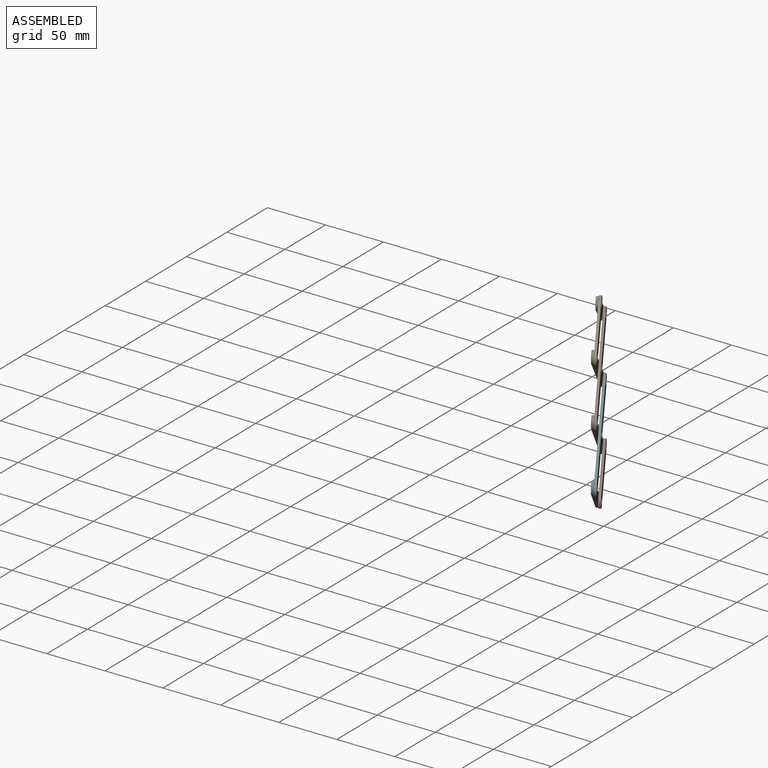
[diagram: subassembly S2 — assembled view]
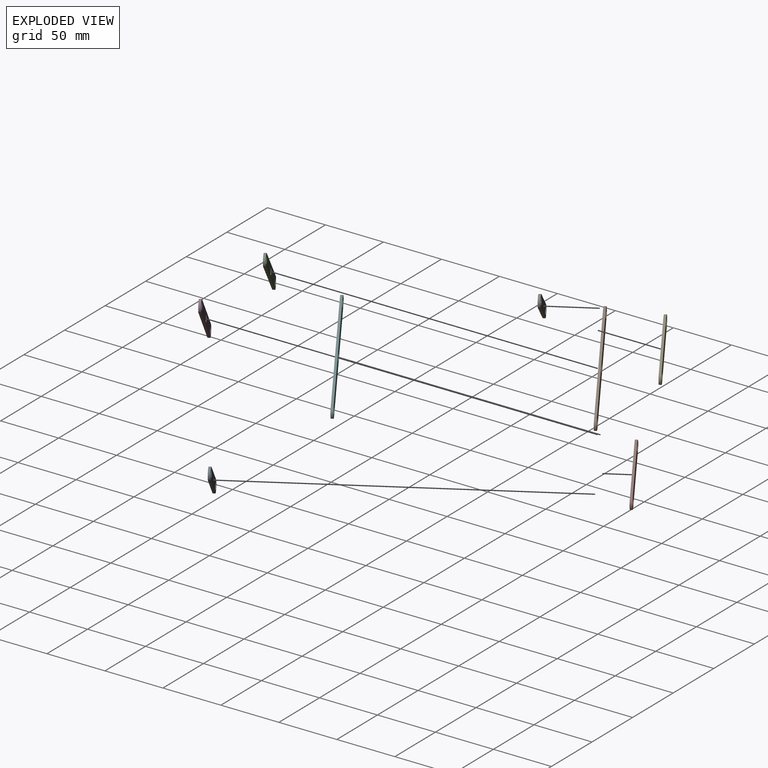
[diagram: subassembly S2 — exploded view]
SUBASSEMBLY S2 TOUR — 8 components, shown here in isolation at its own camera.

INTERNAL MATES
  1. REVOLUTE "Revolute 1": P20 <-> P17, axis (-0.866, -0.500, 0.000) through (32.24, 19.44, 55.87) mm
  2. REVOLUTE "Revolute 3": P6 <-> P17, axis (-0.866, -0.500, 0.000) through (50.01, -11.33, 81.81) mm
  3. REVOLUTE "Revolute 8": P18 <-> P14, axis (-0.866, -0.500, 0.000) through (50.05, -11.41, 132.69) mm
  4. REVOLUTE "Revolute 10": P18 <-> P23, axis (0.866, 0.500, 0.000) through (32.02, 19.82, 157.89) mm
  5. REVOLUTE "Revolute 5": P25 <-> P17, axis (-0.866, -0.500, 0.000) through (14.47, 50.22, 29.93) mm
  6. REVOLUTE "Revolute 9": P6 <-> P23, axis (-0.866, -0.500, 0.000) through (13.74, 51.48, 133.40) mm
  7. REVOLUTE "Revolute 7": P20 <-> P2, axis (-0.866, -0.500, 0.000) through (50.37, -11.96, 30.94) mm
  8. REVOLUTE "Revolute 6": P25 <-> P2, axis (-0.866, -0.500, 0.000) through (32.60, 18.82, 5.00) mm
  9. REVOLUTE "Revolute 4": P6 <-> P14, axis (-0.866, -0.500, 0.000) through (32.08, 19.72, 107.32) mm
  10. REVOLUTE "Revolute 2": P20 <-> P14, axis (-0.866, -0.500, 0.000) through (13.70, 51.56, 81.37) mm
  11. REVOLUTE "Revolute 8": P18 <-> P14, axis (-0.866, -0.500, 0.000) through (50.05, -11.41, 132.69) mm
  12. REVOLUTE "Revolute 3": P6 <-> P17, axis (-0.866, -0.500, 0.000) through (50.01, -11.33, 81.81) mm
  13. REVOLUTE "Revolute 5": P25 <-> P17, axis (-0.866, -0.500, 0.000) through (14.47, 50.22, 29.93) mm
  14. REVOLUTE "Revolute 7": P20 <-> P2, axis (-0.866, -0.500, 0.000) through (50.37, -11.96, 30.94) mm
  15. REVOLUTE "Revolute 1": P20 <-> P17, axis (-0.866, -0.500, 0.000) through (32.24, 19.44, 55.87) mm
  16. REVOLUTE "Revolute 4": P6 <-> P14, axis (-0.866, -0.500, 0.000) through (32.08, 19.72, 107.32) mm
  17. REVOLUTE "Revolute 9": P6 <-> P23, axis (-0.866, -0.500, 0.000) through (13.74, 51.48, 133.40) mm
  18. REVOLUTE "Revolute 6": P25 <-> P2, axis (-0.866, -0.500, 0.000) through (32.60, 18.82, 5.00) mm
  19. REVOLUTE "Revolute 2": P20 <-> P14, axis (-0.866, -0.500, 0.000) through (13.70, 51.56, 81.37) mm
  20. REVOLUTE "Revolute 10": P18 <-> P23, axis (0.866, 0.500, 0.000) through (32.02, 19.82, 157.89) mm

ASSEMBLY ORDER (within the subassembly)
  1. P6 — the base component [order verified]
  2. P18 [order verified]
  3. P25 [order verified]
  4. P20 [order verified]
  5. P23 [order verified]
  6. P17 [order verified]
  7. P14 [order verified]
  8. P2 [order verified]
Order-tag legend:
  [order verified] — this step's position reverses a verified removal order: the component was checked to insert without passing through the ones already placed.
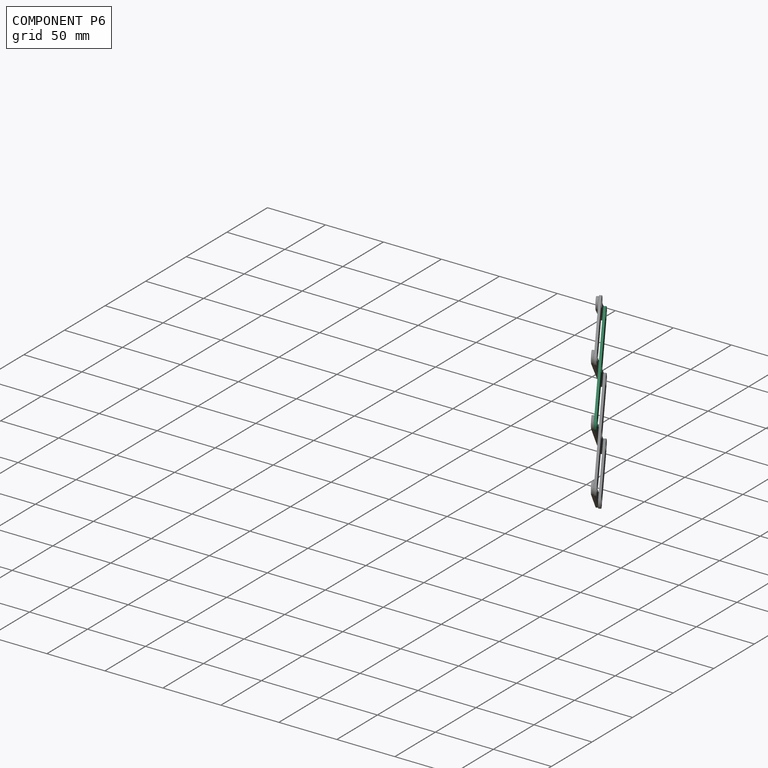
[diagram: component P6 — assembled]
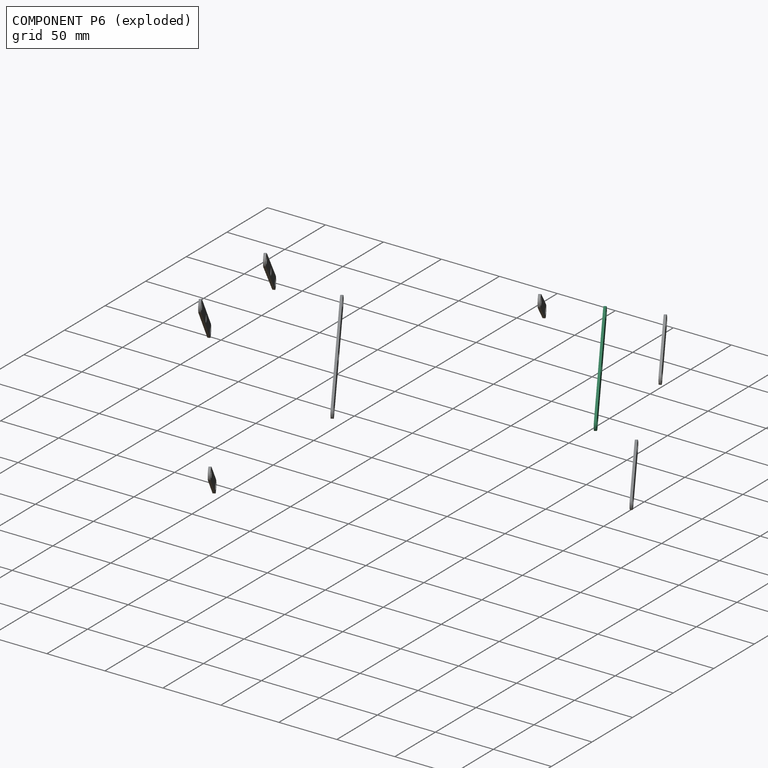
[diagram: component P6 — exploded]
COMPONENT P6 — recipe-attached (CADFS 00656249, mesh-verified: the recipe's output STEP matches this component's geometry to below the mesh-comparison resolution (tessellation chordal tolerance ~0.151 mm)).
Held by: REVOLUTE mate "Revolute 3" to P17; REVOLUTE mate "Revolute 9" to P23; REVOLUTE mate "Revolute 4" to P14; REVOLUTE mate "Revolute 3" to P17; REVOLUTE mate "Revolute 4" to P14; REVOLUTE mate "Revolute 9" to P23.
Construction recipe (FeatureScript — the CAD program that rebuilds this solid; sketch coordinates are in the units given by the * unit suffixes, e.g. mm):

FeatureScript 1511;
import(path : "onshape/std/geometry.fs", version : "1511.0");
import(path : "onshape/std/common.fs", version : "1511.0");
const mm = millimeter;
const VERTEX = EntityType.VERTEX;
const EDGE = EntityType.EDGE;
const FACE = EntityType.FACE;
const BODY = EntityType.BODY;
function v(x, y){return vector(x, y);}
function OD(order){return orderDisambiguation(order);}
function OSD(set){return originalSetDisambiguation(set);}
function TD(topology){return topologyDisambiguation(topology);}
function TDD(query){return trueDependencyDisambiguation(query);}
function sQuery(a, b, c) {return sketchEntityQuery(a, b, c);}

annotation { "Feature Type Name" : "Feature", "Feature Type Description" : "" }
export const myFeature = defineFeature(function(context is Context, id is Id, definition is map)
    precondition{}
    {
        {
            var Q0;
            Q0=qCreatedBy(makeId("Front.planeOp"),FACE);
            var sketch = newSketch(context, id + "F0", { "sketchPlane" : qUnion([Q0])});
            skLineSegment(sketch, "E0.bottom", {"start": v(-50, 5) * mm, "end": v(50, 5) * mm});
            skLineSegment(sketch, "E0.top", {"start": v(-50, -5) * mm, "end": v(50, -5) * mm});
            skLineSegment(sketch, "E0.left", {"start": v(-50, 5) * mm, "end": v(-50, -5) * mm});
            skLineSegment(sketch, "E0.right", {"start": v(50, 5) * mm, "end": v(50, -5) * mm});
            skCircle(sketch, "E1", {"center": v(0, 0) * mm, "radius": 3 * mm});
            skCircle(sketch, "E2", {"center": v(-44, 0) * mm, "radius": 3 * mm});
            skPoint(sketch, "E2.centerSnap0", {"position": v(-50, 0) * mm});
            skCircle(sketch, "E3", {"center": v(44, 0) * mm, "radius": 3 * mm});
            skSolve(sketch);
        }
        {
            var Q0;
            Q0 = qSketchRegion(id + "F0", true);
            extrude(context, id + "F1", {"entities" : qUnion([Q0]), "depth" : 2 * mm, "offsetDistance" : 25 * mm});
        }
        {
            var Q0;
            Q0=makeQuery(id+"F1.opExtrude","SWEPT_EDGE",EDGE,{"disambiguationData":[OSD([sQuery(id+"F0.wireOp",EDGE,"E0.bottom"),sQuery(id+"F0.wireOp",EDGE,"E0.left")])]});
            var Q1;
            Q1=makeQuery(id+"F1.opExtrude","SWEPT_EDGE",EDGE,{"disambiguationData":[OSD([sQuery(id+"F0.wireOp",EDGE,"E0.top"),sQuery(id+"F0.wireOp",EDGE,"E0.left")])]});
            var Q2;
            Q2=makeQuery(id+"F1.opExtrude","SWEPT_EDGE",EDGE,{"disambiguationData":[OSD([sQuery(id+"F0.wireOp",EDGE,"E0.bottom"),sQuery(id+"F0.wireOp",EDGE,"E0.right")])]});
            var Q3;
            Q3=makeQuery(id+"F1.opExtrude","SWEPT_EDGE",EDGE,{"disambiguationData":[OSD([sQuery(id+"F0.wireOp",EDGE,"E0.top"),sQuery(id+"F0.wireOp",EDGE,"E0.right")])]});
            fillet(context, id + "F2", {"entities" : qUnion([Q0, Q1, Q2, Q3]), "radius" : 5 * mm, "tangentPropagation" : true, "allowEdgeOverflow" : false});
        }
    });
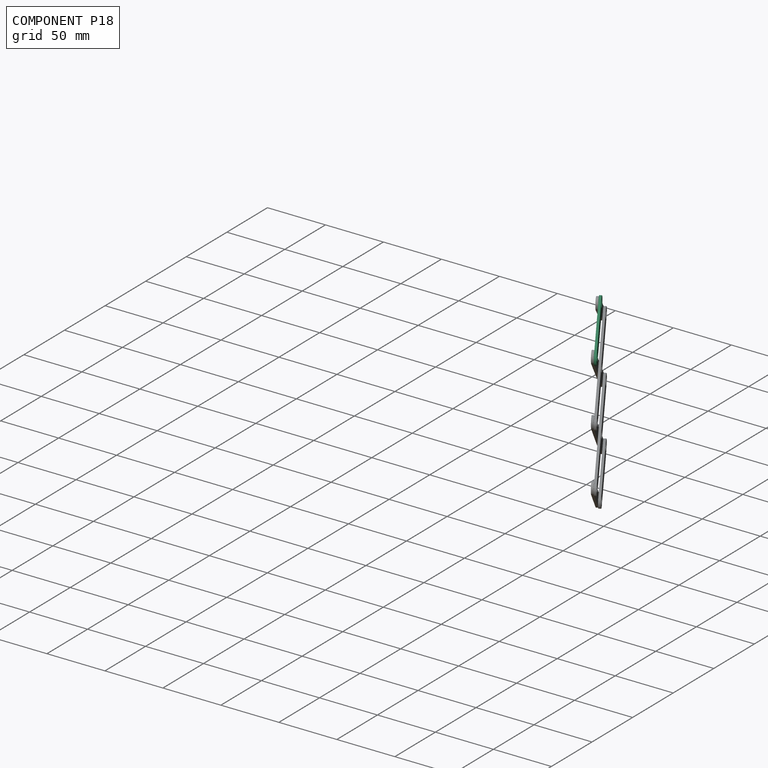
[diagram: component P18 — assembled]
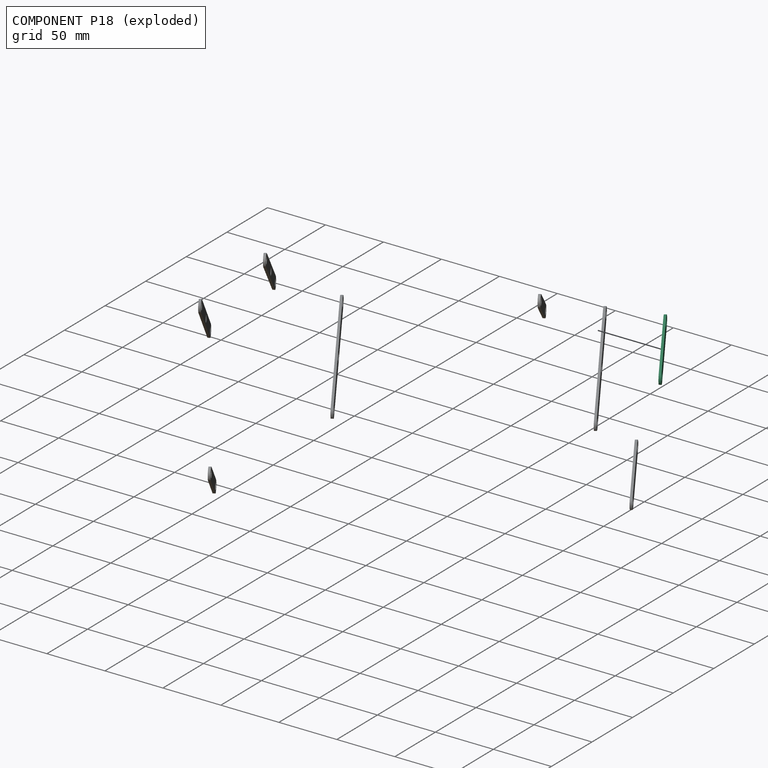
[diagram: component P18 — exploded]
COMPONENT P18 — recipe-attached (CADFS 00656250, mesh-verified: the recipe's output STEP matches this component's geometry to below the mesh-comparison resolution (tessellation chordal tolerance ~0.0853 mm)).
Held by: REVOLUTE mate "Revolute 8" to P14; REVOLUTE mate "Revolute 10" to P23; REVOLUTE mate "Revolute 8" to P14; REVOLUTE mate "Revolute 10" to P23.
Construction recipe (FeatureScript — the CAD program that rebuilds this solid; sketch coordinates are in the units given by the * unit suffixes, e.g. mm):

FeatureScript 1511;
import(path : "onshape/std/geometry.fs", version : "1511.0");
import(path : "onshape/std/common.fs", version : "1511.0");
const mm = millimeter;
const VERTEX = EntityType.VERTEX;
const EDGE = EntityType.EDGE;
const FACE = EntityType.FACE;
const BODY = EntityType.BODY;
function v(x, y){return vector(x, y);}
function OD(order){return orderDisambiguation(order);}
function OSD(set){return originalSetDisambiguation(set);}
function TD(topology){return topologyDisambiguation(topology);}
function TDD(query){return trueDependencyDisambiguation(query);}
function sQuery(a, b, c) {return sketchEntityQuery(a, b, c);}

annotation { "Feature Type Name" : "Feature", "Feature Type Description" : "" }
export const myFeature = defineFeature(function(context is Context, id is Id, definition is map)
    precondition{}
    {
        {
            var Q0;
            Q0=qCreatedBy(makeId("Front.planeOp"),FACE);
            var sketch = newSketch(context, id + "F0", { "sketchPlane" : qUnion([Q0])});
            skLineSegment(sketch, "E0.bottom", {"start": v(-49.84, 5.24) * mm, "end": v(6.16, 5.24) * mm});
            skLineSegment(sketch, "E0.top", {"start": v(-49.84, -4.76) * mm, "end": v(6.16, -4.76) * mm});
            skLineSegment(sketch, "E0.left", {"start": v(-49.84, 5.24) * mm, "end": v(-49.84, -4.76) * mm});
            skLineSegment(sketch, "E0.right", {"start": v(6.16, 5.24) * mm, "end": v(6.16, -4.76) * mm});
            skCircle(sketch, "E1", {"center": v(0.16, 0.24) * mm, "radius": 3 * mm});
            skCircle(sketch, "E2", {"center": v(-43.84, 0.24) * mm, "radius": 3 * mm});
            skPoint(sketch, "E2.centerSnap0", {"position": v(-49.84, 0.24) * mm});
            skSolve(sketch);
        }
        {
            var Q0;
            Q0 = qSketchRegion(id + "F0", true);
            extrude(context, id + "F1", {"entities" : qUnion([Q0]), "depth" : 2 * mm, "offsetDistance" : 25 * mm});
        }
        {
            var Q0;
            Q0=makeQuery(id+"F1.opExtrude","SWEPT_EDGE",EDGE,{"disambiguationData":[OSD([sQuery(id+"F0.wireOp",EDGE,"E0.bottom"),sQuery(id+"F0.wireOp",EDGE,"E0.left")])]});
            var Q1;
            Q1=makeQuery(id+"F1.opExtrude","SWEPT_EDGE",EDGE,{"disambiguationData":[OSD([sQuery(id+"F0.wireOp",EDGE,"E0.top"),sQuery(id+"F0.wireOp",EDGE,"E0.left")])]});
            var Q2;
            Q2=makeQuery(id+"F1.opExtrude","SWEPT_EDGE",EDGE,{"disambiguationData":[OSD([sQuery(id+"F0.wireOp",EDGE,"E0.bottom"),sQuery(id+"F0.wireOp",EDGE,"E0.right")])]});
            var Q3;
            Q3=makeQuery(id+"F1.opExtrude","SWEPT_EDGE",EDGE,{"disambiguationData":[OSD([sQuery(id+"F0.wireOp",EDGE,"E0.top"),sQuery(id+"F0.wireOp",EDGE,"E0.right")])]});
            fillet(context, id + "F2", {"entities" : qUnion([Q0, Q1, Q2, Q3]), "radius" : 5 * mm, "tangentPropagation" : true, "allowEdgeOverflow" : false});
        }
    });
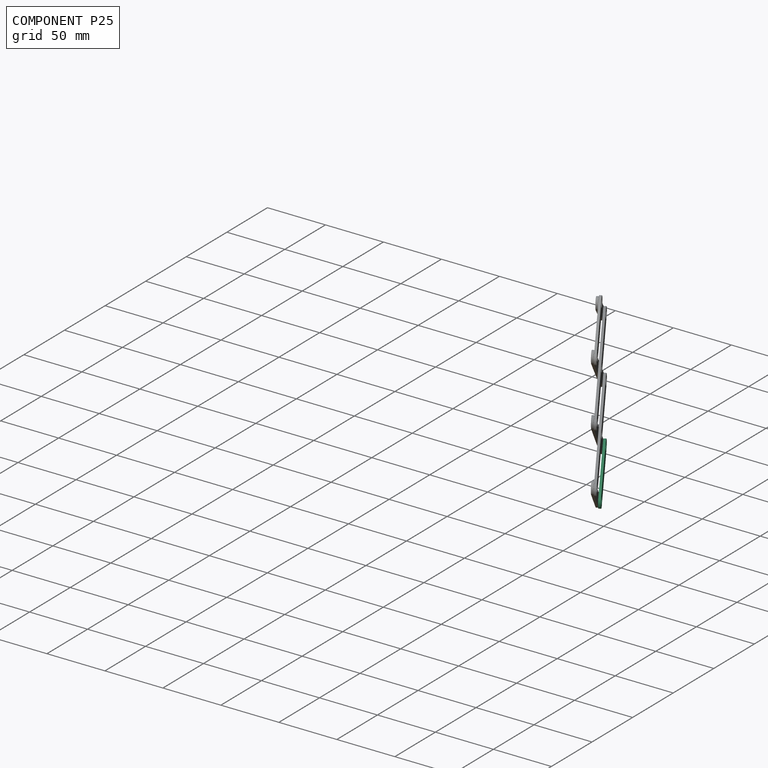
[diagram: component P25 — assembled]
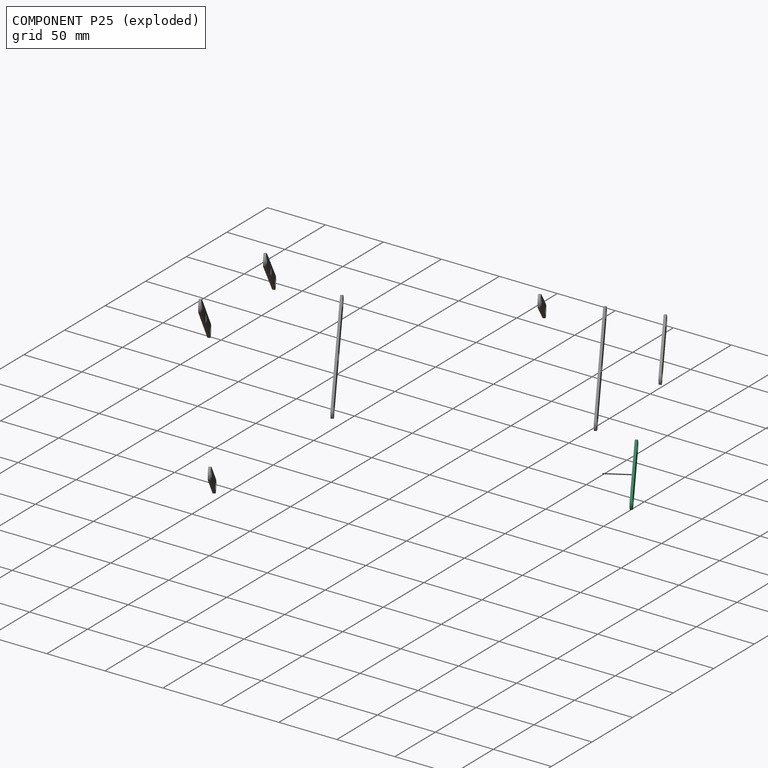
[diagram: component P25 — exploded]
COMPONENT P25 — recipe-attached (CADFS 00656250, mesh-verified: the recipe's output STEP matches this component's geometry to below the mesh-comparison resolution (tessellation chordal tolerance ~0.0853 mm)).
Held by: REVOLUTE mate "Revolute 5" to P17; REVOLUTE mate "Revolute 6" to P2; REVOLUTE mate "Revolute 5" to P17; REVOLUTE mate "Revolute 6" to P2.
Construction recipe (FeatureScript — the CAD program that rebuilds this solid; sketch coordinates are in the units given by the * unit suffixes, e.g. mm):

FeatureScript 1511;
import(path : "onshape/std/geometry.fs", version : "1511.0");
import(path : "onshape/std/common.fs", version : "1511.0");
const mm = millimeter;
const VERTEX = EntityType.VERTEX;
const EDGE = EntityType.EDGE;
const FACE = EntityType.FACE;
const BODY = EntityType.BODY;
function v(x, y){return vector(x, y);}
function OD(order){return orderDisambiguation(order);}
function OSD(set){return originalSetDisambiguation(set);}
function TD(topology){return topologyDisambiguation(topology);}
function TDD(query){return trueDependencyDisambiguation(query);}
function sQuery(a, b, c) {return sketchEntityQuery(a, b, c);}

annotation { "Feature Type Name" : "Feature", "Feature Type Description" : "" }
export const myFeature = defineFeature(function(context is Context, id is Id, definition is map)
    precondition{}
    {
        {
            var Q0;
            Q0=qCreatedBy(makeId("Front.planeOp"),FACE);
            var sketch = newSketch(context, id + "F0", { "sketchPlane" : qUnion([Q0])});
            skLineSegment(sketch, "E0.bottom", {"start": v(-49.84, 5.24) * mm, "end": v(6.16, 5.24) * mm});
            skLineSegment(sketch, "E0.top", {"start": v(-49.84, -4.76) * mm, "end": v(6.16, -4.76) * mm});
            skLineSegment(sketch, "E0.left", {"start": v(-49.84, 5.24) * mm, "end": v(-49.84, -4.76) * mm});
            skLineSegment(sketch, "E0.right", {"start": v(6.16, 5.24) * mm, "end": v(6.16, -4.76) * mm});
            skCircle(sketch, "E1", {"center": v(0.16, 0.24) * mm, "radius": 3 * mm});
            skCircle(sketch, "E2", {"center": v(-43.84, 0.24) * mm, "radius": 3 * mm});
            skPoint(sketch, "E2.centerSnap0", {"position": v(-49.84, 0.24) * mm});
            skSolve(sketch);
        }
        {
            var Q0;
            Q0 = qSketchRegion(id + "F0", true);
            extrude(context, id + "F1", {"entities" : qUnion([Q0]), "depth" : 2 * mm, "offsetDistance" : 25 * mm});
        }
        {
            var Q0;
            Q0=makeQuery(id+"F1.opExtrude","SWEPT_EDGE",EDGE,{"disambiguationData":[OSD([sQuery(id+"F0.wireOp",EDGE,"E0.bottom"),sQuery(id+"F0.wireOp",EDGE,"E0.left")])]});
            var Q1;
            Q1=makeQuery(id+"F1.opExtrude","SWEPT_EDGE",EDGE,{"disambiguationData":[OSD([sQuery(id+"F0.wireOp",EDGE,"E0.top"),sQuery(id+"F0.wireOp",EDGE,"E0.left")])]});
            var Q2;
            Q2=makeQuery(id+"F1.opExtrude","SWEPT_EDGE",EDGE,{"disambiguationData":[OSD([sQuery(id+"F0.wireOp",EDGE,"E0.bottom"),sQuery(id+"F0.wireOp",EDGE,"E0.right")])]});
            var Q3;
            Q3=makeQuery(id+"F1.opExtrude","SWEPT_EDGE",EDGE,{"disambiguationData":[OSD([sQuery(id+"F0.wireOp",EDGE,"E0.top"),sQuery(id+"F0.wireOp",EDGE,"E0.right")])]});
            fillet(context, id + "F2", {"entities" : qUnion([Q0, Q1, Q2, Q3]), "radius" : 5 * mm, "tangentPropagation" : true, "allowEdgeOverflow" : false});
        }
    });
